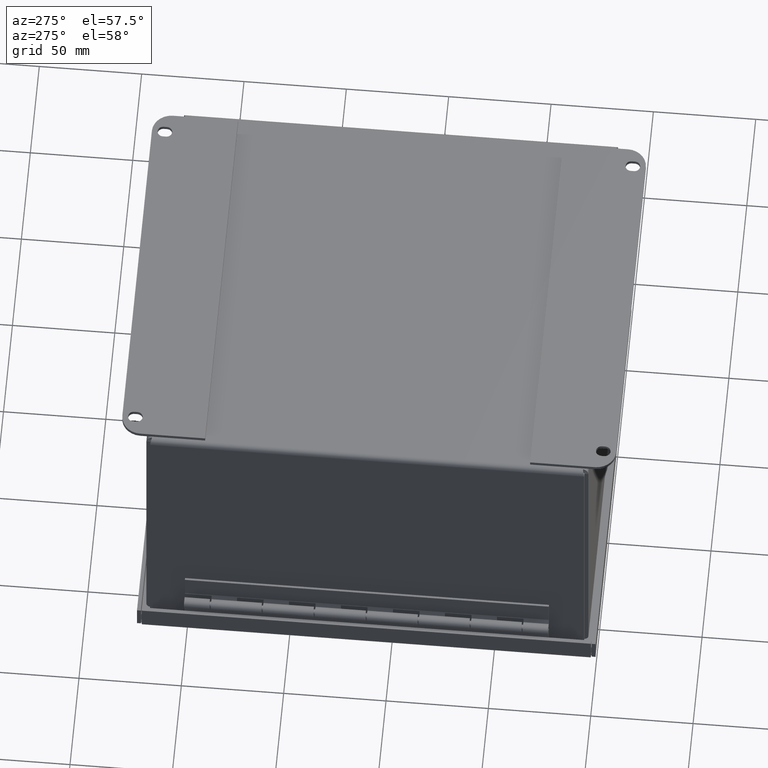
[diagram: clean part render]
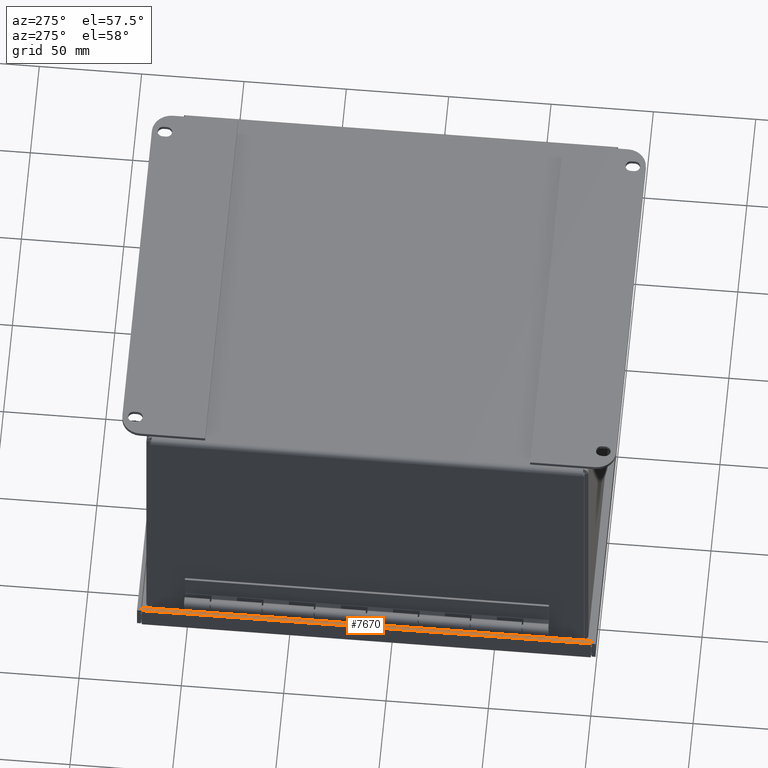
[diagram: same view with one face highlighted and labeled with its STEP entity id]
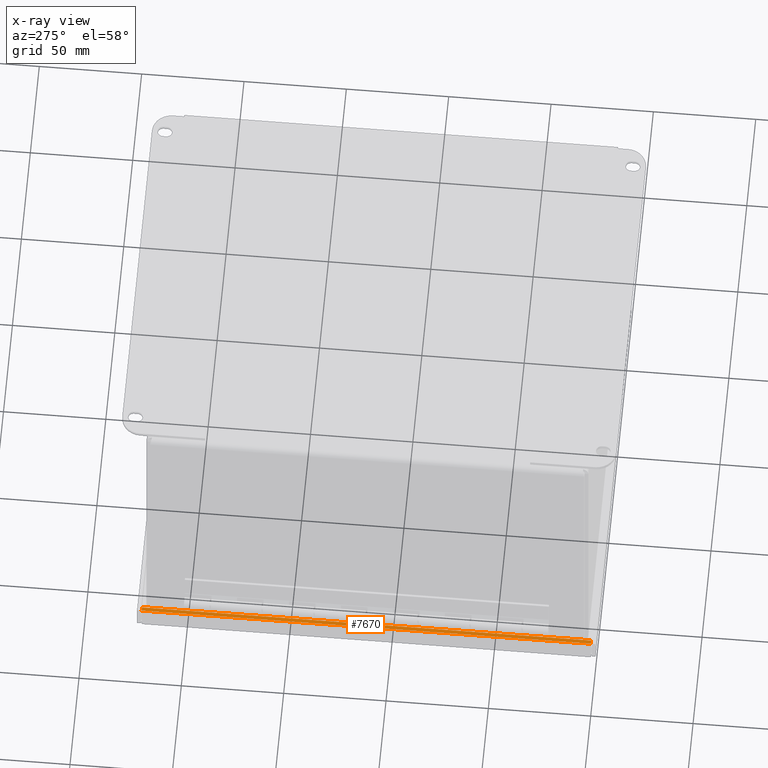
[diagram: x-ray of the same camera — body ghosted, the highlighted face saturated]
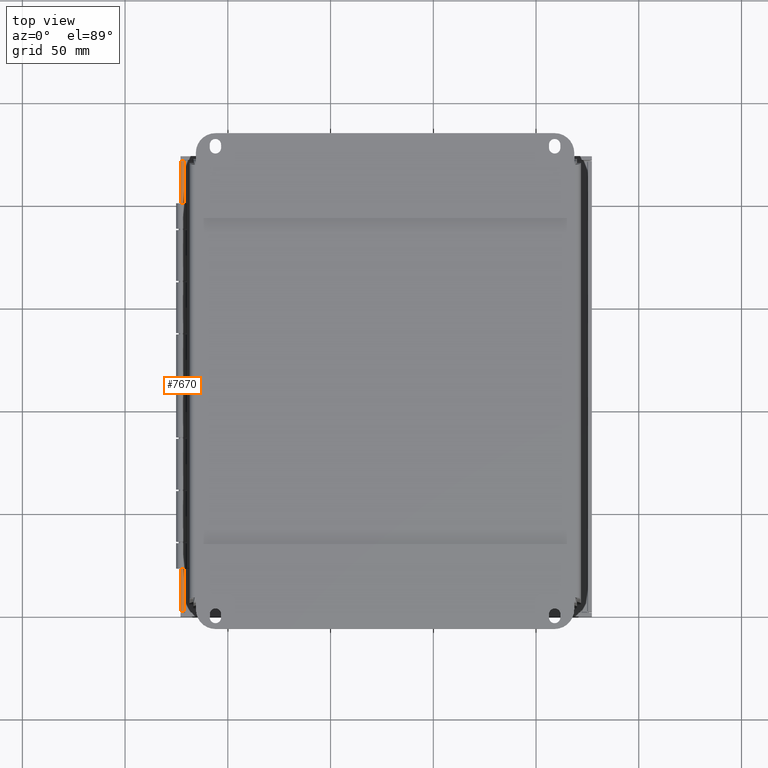
[diagram: same view with one face highlighted and labeled with its STEP entity id]
A machine part, auxiliary view. The second image highlights one B-rep face of the part: STEP entity #7670.
The next image is the same camera in x-ray: the body ghosted, the highlighted face saturated — about 0% of this face is hidden behind the body in this view.
A second angle (top view) of the same face is appended — the face is thin or edge-on in the first view.
In plain terms, the highlighted planar face has unit normal (-0, -0, 1).
Its self-contained STEP definition (entity closure, byte-faithful):
#802=FACE_OUTER_BOUND('',#1241,.T.);
#1241=EDGE_LOOP('',(#5055,#5056,#5057,#5058));
#1818=LINE('',#11297,#2532);
#1820=LINE('',#11301,#2534);
#1823=LINE('',#11307,#2537);
#1824=LINE('',#11308,#2538);
#2532=VECTOR('',#8881,0.074);
#2534=VECTOR('',#8885,8.64000000000001);
#2537=VECTOR('',#8890,8.64000000000001);
#2538=VECTOR('',#8891,0.074);
#3239=VERTEX_POINT('',#11294);
#3240=VERTEX_POINT('',#11296);
#3241=VERTEX_POINT('',#11300);
#3243=VERTEX_POINT('',#11306);
#3960=EDGE_CURVE('',#3239,#3240,#1818,.T.);
#3962=EDGE_CURVE('',#3241,#3240,#1820,.T.);
#3965=EDGE_CURVE('',#3243,#3239,#1823,.T.);
#3966=EDGE_CURVE('',#3241,#3243,#1824,.T.);
#5055=ORIENTED_EDGE('',*,*,#3960,.F.);
#5056=ORIENTED_EDGE('',*,*,#3965,.F.);
#5057=ORIENTED_EDGE('',*,*,#3966,.F.);
#5058=ORIENTED_EDGE('',*,*,#3962,.T.);
#7069=PLANE('',#8116);
#7670=ADVANCED_FACE('',(#802),#7069,.T.);
#8116=AXIS2_PLACEMENT_3D('',#11305,#8888,#8889);
#8881=DIRECTION('',(-1.,-2.46112431861645E-16,-6.12323399573676E-17));
#8885=DIRECTION('',(3.11202831836647E-16,-1.,-2.0803376929367E-16));
#8888=DIRECTION('center_axis',(-6.12323399573676E-17,-2.0803376929367E-16,
1.));
#8889=DIRECTION('ref_axis',(1.,0.,0.));
#8890=DIRECTION('',(3.11202831836647E-16,-1.,-2.0803376929367E-16));
#8891=DIRECTION('',(1.,-6.30047825565813E-15,6.12323399573663E-17));
#11294=CARTESIAN_POINT('',(0.0740000000000028,0.0900000000000016,0.56));
#11296=CARTESIAN_POINT('',(2.83132005717614E-15,0.0900000000000016,0.56));
#11297=CARTESIAN_POINT('',(0.0555000000000025,0.0900000000000015,0.56));
#11300=CARTESIAN_POINT('',(1.53454982082165E-16,8.73000000000001,0.560000000000002));
#11301=CARTESIAN_POINT('',(1.37768398430843E-16,8.74529289321881,0.560000000000002));
#11305=CARTESIAN_POINT('Origin',(0.0740000000000001,8.74529289321881,0.560000000000002));
#11306=CARTESIAN_POINT('',(0.0740000000000001,8.73000000000001,0.560000000000002));
#11307=CARTESIAN_POINT('',(0.0740000000000001,8.74529289321881,0.560000000000002));
#11308=CARTESIAN_POINT('',(0.0555000000000001,8.73000000000001,0.560000000000002));